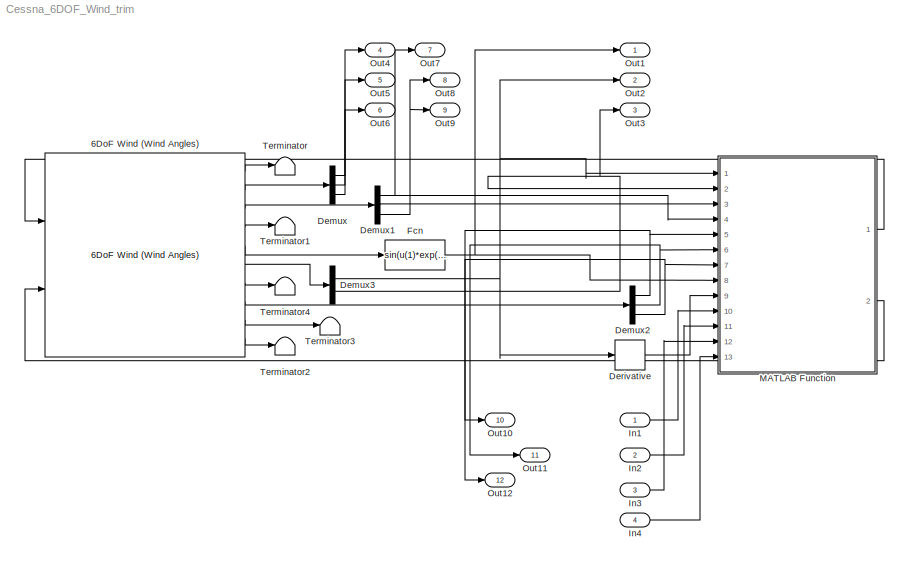
MODEL Cessna_6DOF_Wind_trim
KIND model
BLOCK [Reference] 6DoF Wind (Wind Angles)  REF=aerolibobsolete/6DoF Wind (Wind Angles)
  Ports = [2, 10]
  SID = 1
  SourceBlock = aerolibobsolete/6DoF Wind (Wind Angles)
  SourceType = 6DoF EoM (Wind Axis)
  Vm_0 = [V alpha beta]
  inertia = diag([I_xx I_yy I_zz])
  inertia_e = eye(3)
  inertia_f = 2*eye(3)
  mass_0 = m
  mass_e = 0.5
  mass_f = 2.0
  mtype = Fixed
  pm_0 = [p q r]
  rep = Wind Angles
  units = Metric (MKS)
  wind_0 = [0 0 0]
  xme_0 = [x y z]
BLOCK [Demux] Demux
  DisplayOption = bar
  Outputs = 3
  Ports = [1, 3]
  SID = 2
BLOCK [Demux] Demux1
  DisplayOption = bar
  Outputs = 3
  Ports = [1, 3]
  SID = 3
BLOCK [Demux] Demux2
  DisplayOption = bar
  Outputs = 3
  Ports = [1, 3]
  SID = 4
BLOCK [Demux] Demux3
  DisplayOption = bar
  Outputs = 2
  Ports = [1, 2]
  SID = 5
BLOCK [Derivative] Derivative
  SID = 6
BLOCK [Fcn] Fcn
  Expr = sin(u(1)*exp(2.3*(-u(2))))
  SID = 7
BLOCK [Inport] In1
  IconDisplay = Port number
  SID = 18
BLOCK [Inport] In2
  IconDisplay = Port number
  Port = 2
  SID = 19
BLOCK [Inport] In3
  IconDisplay = Port number
  Port = 3
  SID = 20
BLOCK [Inport] In4
  IconDisplay = Port number
  Port = 4
  SID = 21
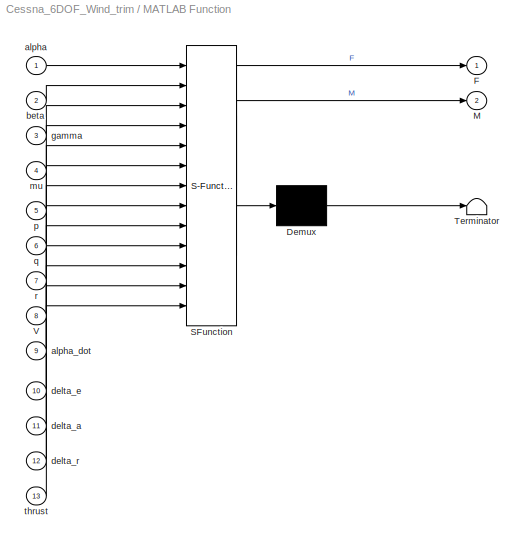
BLOCK [SubSystem] MATLAB Function
  ErrorFcn = Stateflow.Translate.translate
  PermitHierarchicalResolution = ExplicitOnly
  Ports = [13, 2]
  RequestExecContextInheritance = off
  SFBlockType = MATLAB Function
  SID = 8
  TreatAsAtomicUnit = on
  Variant = off
BLOCK [Demux] MATLAB Function/ Demux 
  Outputs = 1
  Ports = [1, 1]
  SID = 8::35
BLOCK [S-Function] MATLAB Function/ SFunction 
  EnableBusSupport = off
  FunctionName = sf_sfun
  PortCounts = [13 3]
  Ports = [13, 3]
  SFunctionDeploymentMode = off
  SID = 8::34
  Tag = Stateflow S-Function Cessna_6DOF_Wind_trim 2
BLOCK [Terminator] MATLAB Function/ Terminator 
  SID = 8::36
BLOCK [Outport] MATLAB Function/F
  IconDisplay = Port number
  SID = 8::5
BLOCK [Outport] MATLAB Function/M
  IconDisplay = Port number
  Port = 2
  SID = 8::26
BLOCK [Inport] MATLAB Function/V
  IconDisplay = Port number
  Port = 8
  SID = 8::24
BLOCK [Inport] MATLAB Function/alpha
  IconDisplay = Port number
  SID = 8::1
BLOCK [Inport] MATLAB Function/alpha_dot
  IconDisplay = Port number
  Port = 9
  SID = 8::25
BLOCK [Inport] MATLAB Function/beta
  IconDisplay = Port number
  Port = 2
  SID = 8::18
BLOCK [Inport] MATLAB Function/delta_a
  IconDisplay = Port number
  Port = 11
  SID = 8::28
BLOCK [Inport] MATLAB Function/delta_e
  IconDisplay = Port number
  Port = 10
  SID = 8::27
BLOCK [Inport] MATLAB Function/delta_r
  IconDisplay = Port number
  Port = 12
  SID = 8::29
BLOCK [Inport] MATLAB Function/gamma
  IconDisplay = Port number
  Port = 3
  SID = 8::19
BLOCK [Inport] MATLAB Function/mu
  IconDisplay = Port number
  Port = 4
  SID = 8::20
BLOCK [Inport] MATLAB Function/p
  IconDisplay = Port number
  Port = 5
  SID = 8::21
BLOCK [Inport] MATLAB Function/q
  IconDisplay = Port number
  Port = 6
  SID = 8::22
BLOCK [Inport] MATLAB Function/r
  IconDisplay = Port number
  Port = 7
  SID = 8::23
BLOCK [Inport] MATLAB Function/thrust
  IconDisplay = Port number
  Port = 13
  SID = 8::30
BLOCK [Outport] Out1
  IconDisplay = Port number
  SID = 22
BLOCK [Outport] Out10
  IconDisplay = Port number
  Port = 10
  SID = 31
BLOCK [Outport] Out11
  IconDisplay = Port number
  Port = 11
  SID = 32
BLOCK [Outport] Out12
  IconDisplay = Port number
  Port = 12
  SID = 33
BLOCK [Outport] Out2
  IconDisplay = Port number
  Port = 2
  SID = 23
BLOCK [Outport] Out3
  IconDisplay = Port number
  Port = 3
  SID = 24
BLOCK [Outport] Out4
  IconDisplay = Port number
  Port = 4
  SID = 25
BLOCK [Outport] Out5
  IconDisplay = Port number
  Port = 5
  SID = 26
BLOCK [Outport] Out6
  IconDisplay = Port number
  Port = 6
  SID = 27
BLOCK [Outport] Out7
  IconDisplay = Port number
  Port = 7
  SID = 28
BLOCK [Outport] Out8
  IconDisplay = Port number
  Port = 8
  SID = 29
BLOCK [Outport] Out9
  IconDisplay = Port number
  Port = 9
  SID = 30
BLOCK [Terminator] Terminator
  SID = 13
BLOCK [Terminator] Terminator1
  SID = 14
BLOCK [Terminator] Terminator2
  SID = 15
BLOCK [Terminator] Terminator3
  SID = 16
BLOCK [Terminator] Terminator4
  SID = 17
LINE 6DoF Wind (Wind Angles):1 -> Terminator:1
LINE 6DoF Wind (Wind Angles):10 -> Terminator2:1
LINE 6DoF Wind (Wind Angles):2 -> Demux:1
LINE 6DoF Wind (Wind Angles):3 -> Demux1:1
LINE 6DoF Wind (Wind Angles):4 -> Terminator1:1
LINE 6DoF Wind (Wind Angles):5 -> Fcn:1
LINE 6DoF Wind (Wind Angles):6 -> Demux3:1
LINE 6DoF Wind (Wind Angles):7 -> Terminator4:1
LINE 6DoF Wind (Wind Angles):8 -> Demux2:1
LINE 6DoF Wind (Wind Angles):9 -> Terminator3:1
NET Demux1:1 -> MATLAB Function:4, Out7:1
LINE Demux1:2 -> MATLAB Function:3
NET Demux1:3 -> Out8:1, Out9:1
NET Demux2:1 -> MATLAB Function:5, Out10:1
NET Demux2:2 -> MATLAB Function:6, Out11:1
NET Demux2:3 -> MATLAB Function:7, Out12:1
NET Demux3:1 -> Derivative:1, MATLAB Function:1, Out2:1
NET Demux3:2 -> MATLAB Function:2, Out3:1
LINE Demux:1 -> Out4:1
LINE Demux:2 -> Out5:1
LINE Demux:3 -> Out6:1
LINE Derivative:1 -> MATLAB Function:9
NET Fcn:1 -> MATLAB Function:8, Out1:1
LINE In1:1 -> MATLAB Function:10
LINE In2:1 -> MATLAB Function:11
LINE In3:1 -> MATLAB Function:12
LINE In4:1 -> MATLAB Function:13
LINE MATLAB Function/ Demux :1 -> MATLAB Function/ Terminator :1
LINE MATLAB Function/ SFunction :1 -> MATLAB Function/ Demux :1
LINE MATLAB Function/ SFunction :2 -> MATLAB Function/F:1
LINE MATLAB Function/ SFunction :3 -> MATLAB Function/M:1
LINE MATLAB Function/V:1 -> MATLAB Function/ SFunction :8
LINE MATLAB Function/alpha:1 -> MATLAB Function/ SFunction :1
LINE MATLAB Function/alpha_dot:1 -> MATLAB Function/ SFunction :9
LINE MATLAB Function/beta:1 -> MATLAB Function/ SFunction :2
LINE MATLAB Function/delta_a:1 -> MATLAB Function/ SFunction :11
LINE MATLAB Function/delta_e:1 -> MATLAB Function/ SFunction :10
LINE MATLAB Function/delta_r:1 -> MATLAB Function/ SFunction :12
LINE MATLAB Function/gamma:1 -> MATLAB Function/ SFunction :3
LINE MATLAB Function/mu:1 -> MATLAB Function/ SFunction :4
LINE MATLAB Function/p:1 -> MATLAB Function/ SFunction :5
LINE MATLAB Function/q:1 -> MATLAB Function/ SFunction :6
LINE MATLAB Function/r:1 -> MATLAB Function/ SFunction :7
LINE MATLAB Function/thrust:1 -> MATLAB Function/ SFunction :13
LINE MATLAB Function:1 -> 6DoF Wind (Wind Angles):1
LINE MATLAB Function:2 -> 6DoF Wind (Wind Angles):2
note: NET lines group one-source signal fan-out (src -> all destinations, sorted); 1:1 wires keep LINE
CHART MATLAB Function states=1 transitions=1
  STATE_LABEL 'eML_blk_kernel()'
